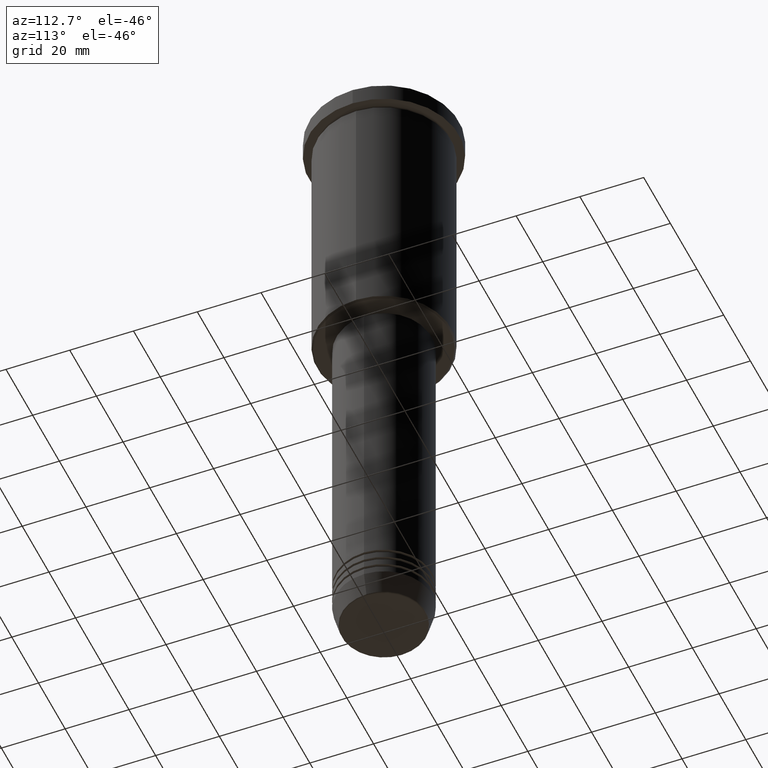
[diagram: clean part render]
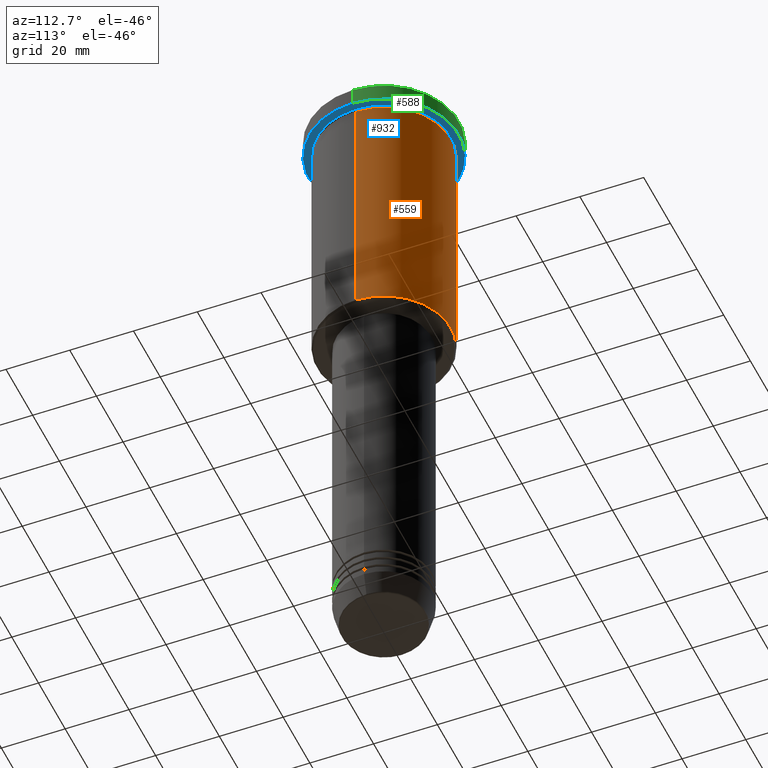
[diagram: same view with three faces highlighted in distinct colors, each labeled with its STEP entity id]
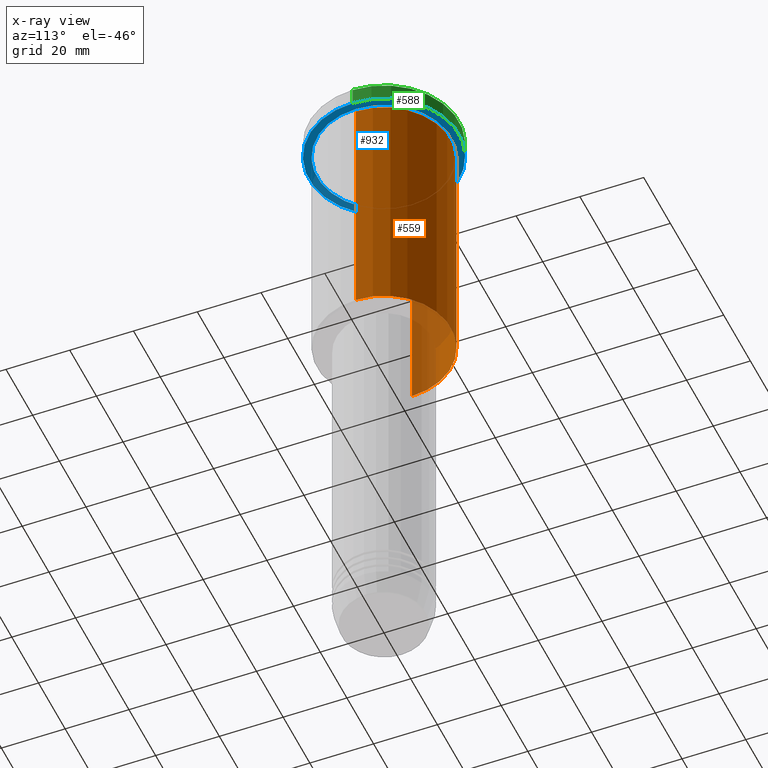
[diagram: x-ray of the same camera — body ghosted, the three highlighted faces saturated]
A machine part, auxiliary view with three faces highlighted in distinct colors.
The next image is the same camera in x-ray (body ghosted, the three faces saturated) — at least one of them is partly hidden behind the body in this view.
Their STEP definitions:

[orange] entity #559 — the highlighted cylindrical surface (partial cylindrical patch) has radius 21 mm, axis along (-0, -0, 1).
#11 = AXIS2_PLACEMENT_3D ( 'NONE', #710, #608, #257 ) ;
#15 = CARTESIAN_POINT ( 'NONE',  ( 0.000000000000000000, 0.000000000000000000, -6.999999999999994671 ) ) ;
#71 = AXIS2_PLACEMENT_3D ( 'NONE', #15, #749, #1109 ) ;
#109 = AXIS2_PLACEMENT_3D ( 'NONE', #249, #886, #1066 ) ;
#150 = VECTOR ( 'NONE', #752, 1000.000000000000000 ) ;
#210 = CARTESIAN_POINT ( 'NONE',  ( -21.00000000000000000, 2.571758278209441661E-15, 0.000000000000000000 ) ) ;
#220 = EDGE_CURVE ( 'NONE', #1074, #974, #1116, .T. ) ;
#240 = FACE_OUTER_BOUND ( 'NONE', #875, .T. ) ;
#249 = CARTESIAN_POINT ( 'NONE',  ( 0.000000000000000000, 0.000000000000000000, 0.000000000000000000 ) ) ;
#257 = DIRECTION ( 'NONE',  ( -1.000000000000000000, 0.000000000000000000, 0.000000000000000000 ) ) ;
#271 = DIRECTION ( 'NONE',  ( -0.000000000000000000, -0.000000000000000000, 1.000000000000000000 ) ) ;
#332 = VECTOR ( 'NONE', #271, 1000.000000000000000 ) ;
#354 = CARTESIAN_POINT ( 'NONE',  ( -21.00000000000000000, 2.571758278209441661E-15, -6.999999999999994671 ) ) ;
#398 = LINE ( 'NONE', #472, #332 ) ;
#441 = VERTEX_POINT ( 'NONE', #957 ) ;
#453 = EDGE_CURVE ( 'NONE', #764, #974, #777, .T. ) ;
#472 = CARTESIAN_POINT ( 'NONE',  ( 21.00000000000000000, 0.000000000000000000, 0.000000000000000000 ) ) ;
#483 = ORIENTED_EDGE ( 'NONE', *, *, #220, .F. ) ;
#487 = ORIENTED_EDGE ( 'NONE', *, *, #976, .T. ) ;
#535 = CYLINDRICAL_SURFACE ( 'NONE', #109, 21.00000000000000000 ) ;
#542 = CIRCLE ( 'NONE', #11, 21.00000000000000000 ) ;
#559 = ADVANCED_FACE ( 'NONE', ( #240 ), #535, .T. ) ;
#587 = CARTESIAN_POINT ( 'NONE',  ( -21.00000000000000000, 2.571758278209441661E-15, -85.49999999999997158 ) ) ;
#608 = DIRECTION ( 'NONE',  ( -0.000000000000000000, -0.000000000000000000, 1.000000000000000000 ) ) ;
#710 = CARTESIAN_POINT ( 'NONE',  ( 0.000000000000000000, 0.000000000000000000, -85.49999999999997158 ) ) ;
#749 = DIRECTION ( 'NONE',  ( -0.000000000000000000, -0.000000000000000000, 1.000000000000000000 ) ) ;
#752 = DIRECTION ( 'NONE',  ( -0.000000000000000000, -0.000000000000000000, 1.000000000000000000 ) ) ;
#764 = VERTEX_POINT ( 'NONE', #587 ) ;
#777 = LINE ( 'NONE', #210, #150 ) ;
#809 = CARTESIAN_POINT ( 'NONE',  ( 21.00000000000000000, 0.000000000000000000, -6.999999999999994671 ) ) ;
#855 = ORIENTED_EDGE ( 'NONE', *, *, #1130, .F. ) ;
#875 = EDGE_LOOP ( 'NONE', ( #487, #1133, #483, #855 ) ) ;
#886 = DIRECTION ( 'NONE',  ( -0.000000000000000000, -0.000000000000000000, 1.000000000000000000 ) ) ;
#957 = CARTESIAN_POINT ( 'NONE',  ( 21.00000000000000000, 0.000000000000000000, -85.49999999999997158 ) ) ;
#974 = VERTEX_POINT ( 'NONE', #354 ) ;
#976 = EDGE_CURVE ( 'NONE', #441, #764, #542, .T. ) ;
#1066 = DIRECTION ( 'NONE',  ( 1.000000000000000000, 0.000000000000000000, 0.000000000000000000 ) ) ;
#1074 = VERTEX_POINT ( 'NONE', #809 ) ;
#1109 = DIRECTION ( 'NONE',  ( 1.000000000000000000, 0.000000000000000000, 0.000000000000000000 ) ) ;
#1116 = CIRCLE ( 'NONE', #71, 21.00000000000000000 ) ;
#1130 = EDGE_CURVE ( 'NONE', #441, #1074, #398, .T. ) ;
#1133 = ORIENTED_EDGE ( 'NONE', *, *, #453, .T. ) ;

[blue] entity #932 — the highlighted planar face has unit normal (0, 0, -1).
#20 = CARTESIAN_POINT ( 'NONE',  ( -23.50000000000000000, 2.877919977996280320E-15, -5.999999999999994671 ) ) ;
#47 = EDGE_LOOP ( 'NONE', ( #909, #1065 ) ) ;
#59 = CARTESIAN_POINT ( 'NONE',  ( 0.000000000000000000, 0.000000000000000000, -5.999999999999994671 ) ) ;
#63 = CARTESIAN_POINT ( 'NONE',  ( 23.50000000000000000, 0.000000000000000000, -5.999999999999994671 ) ) ;
#117 = DIRECTION ( 'NONE',  ( -1.000000000000000000, 0.000000000000000000, 0.000000000000000000 ) ) ;
#123 = ORIENTED_EDGE ( 'NONE', *, *, #623, .T. ) ;
#165 = VERTEX_POINT ( 'NONE', #20 ) ;
#186 = CARTESIAN_POINT ( 'NONE',  ( 0.000000000000000000, 0.000000000000000000, -5.999999999999994671 ) ) ;
#193 = CARTESIAN_POINT ( 'NONE',  ( 0.000000000000000000, 0.000000000000000000, -5.999999999999994671 ) ) ;
#259 = CARTESIAN_POINT ( 'NONE',  ( 0.000000000000000000, 0.000000000000000000, -5.999999999999994671 ) ) ;
#265 = CIRCLE ( 'NONE', #1096, 21.00000000000000000 ) ;
#277 = EDGE_CURVE ( 'NONE', #1036, #292, #265, .T. ) ;
#281 = CARTESIAN_POINT ( 'NONE',  ( -21.00000000000000000, 0.000000000000000000, -5.999999999999994671 ) ) ;
#292 = VERTEX_POINT ( 'NONE', #281 ) ;
#297 = ORIENTED_EDGE ( 'NONE', *, *, #277, .T. ) ;
#308 = EDGE_CURVE ( 'NONE', #1004, #165, #924, .T. ) ;
#319 = EDGE_LOOP ( 'NONE', ( #123, #297 ) ) ;
#348 = CIRCLE ( 'NONE', #964, 23.50000000000000000 ) ;
#385 = AXIS2_PLACEMENT_3D ( 'NONE', #186, #577, #725 ) ;
#405 = AXIS2_PLACEMENT_3D ( 'NONE', #259, #1075, #436 ) ;
#429 = FACE_OUTER_BOUND ( 'NONE', #47, .T. ) ;
#434 = PLANE ( 'NONE',  #741 ) ;
#436 = DIRECTION ( 'NONE',  ( -1.000000000000000000, 0.000000000000000000, 0.000000000000000000 ) ) ;
#515 = FACE_BOUND ( 'NONE', #319, .T. ) ;
#536 = EDGE_CURVE ( 'NONE', #165, #1004, #348, .T. ) ;
#577 = DIRECTION ( 'NONE',  ( -0.000000000000000000, -0.000000000000000000, 1.000000000000000000 ) ) ;
#604 = DIRECTION ( 'NONE',  ( -1.000000000000000000, 0.000000000000000000, -0.000000000000000000 ) ) ;
#623 = EDGE_CURVE ( 'NONE', #292, #1036, #870, .T. ) ;
#713 = DIRECTION ( 'NONE',  ( -0.000000000000000000, -0.000000000000000000, 1.000000000000000000 ) ) ;
#725 = DIRECTION ( 'NONE',  ( 1.000000000000000000, 0.000000000000000000, 0.000000000000000000 ) ) ;
#741 = AXIS2_PLACEMENT_3D ( 'NONE', #884, #793, #604 ) ;
#793 = DIRECTION ( 'NONE',  ( 0.000000000000000000, 0.000000000000000000, -1.000000000000000000 ) ) ;
#870 = CIRCLE ( 'NONE', #405, 21.00000000000000000 ) ;
#884 = CARTESIAN_POINT ( 'NONE',  ( 0.000000000000000000, 23.50000000000000000, -5.999999999999994671 ) ) ;
#895 = DIRECTION ( 'NONE',  ( 1.000000000000000000, 0.000000000000000000, 0.000000000000000000 ) ) ;
#900 = CARTESIAN_POINT ( 'NONE',  ( 21.00000000000000000, 2.571758278209441661E-15, -5.999999999999994671 ) ) ;
#909 = ORIENTED_EDGE ( 'NONE', *, *, #308, .F. ) ;
#924 = CIRCLE ( 'NONE', #385, 23.50000000000000000 ) ;
#932 = ADVANCED_FACE ( 'NONE', ( #515, #429 ), #434, .T. ) ;
#964 = AXIS2_PLACEMENT_3D ( 'NONE', #59, #713, #895 ) ;
#1004 = VERTEX_POINT ( 'NONE', #63 ) ;
#1036 = VERTEX_POINT ( 'NONE', #900 ) ;
#1065 = ORIENTED_EDGE ( 'NONE', *, *, #536, .F. ) ;
#1075 = DIRECTION ( 'NONE',  ( -0.000000000000000000, -0.000000000000000000, 1.000000000000000000 ) ) ;
#1096 = AXIS2_PLACEMENT_3D ( 'NONE', #193, #1177, #117 ) ;
#1177 = DIRECTION ( 'NONE',  ( -0.000000000000000000, -0.000000000000000000, 1.000000000000000000 ) ) ;

[green] entity #588 — the highlighted cylindrical surface (partial cylindrical patch) has radius 23.5 mm, axis along (-0, -0, 1).
#20 = CARTESIAN_POINT ( 'NONE',  ( -23.50000000000000000, 2.877919977996280320E-15, -5.999999999999994671 ) ) ;
#31 = CARTESIAN_POINT ( 'NONE',  ( -23.50000000000000000, 2.877919977996280320E-15, 0.000000000000000000 ) ) ;
#63 = CARTESIAN_POINT ( 'NONE',  ( 23.50000000000000000, 0.000000000000000000, -5.999999999999994671 ) ) ;
#115 = AXIS2_PLACEMENT_3D ( 'NONE', #908, #934, #121 ) ;
#121 = DIRECTION ( 'NONE',  ( 1.000000000000000000, 0.000000000000000000, 0.000000000000000000 ) ) ;
#152 = DIRECTION ( 'NONE',  ( -0.000000000000000000, -0.000000000000000000, 1.000000000000000000 ) ) ;
#165 = VERTEX_POINT ( 'NONE', #20 ) ;
#186 = CARTESIAN_POINT ( 'NONE',  ( 0.000000000000000000, 0.000000000000000000, -5.999999999999994671 ) ) ;
#256 = VERTEX_POINT ( 'NONE', #1095 ) ;
#302 = LINE ( 'NONE', #668, #630 ) ;
#308 = EDGE_CURVE ( 'NONE', #1004, #165, #924, .T. ) ;
#385 = AXIS2_PLACEMENT_3D ( 'NONE', #186, #577, #725 ) ;
#449 = CYLINDRICAL_SURFACE ( 'NONE', #1040, 23.50000000000000000 ) ;
#485 = EDGE_CURVE ( 'NONE', #1004, #256, #302, .T. ) ;
#577 = DIRECTION ( 'NONE',  ( -0.000000000000000000, -0.000000000000000000, 1.000000000000000000 ) ) ;
#583 = DIRECTION ( 'NONE',  ( -0.000000000000000000, -0.000000000000000000, 1.000000000000000000 ) ) ;
#586 = ORIENTED_EDGE ( 'NONE', *, *, #485, .F. ) ;
#588 = ADVANCED_FACE ( 'NONE', ( #962 ), #449, .T. ) ;
#600 = LINE ( 'NONE', #31, #1100 ) ;
#630 = VECTOR ( 'NONE', #583, 1000.000000000000000 ) ;
#668 = CARTESIAN_POINT ( 'NONE',  ( 23.50000000000000000, 0.000000000000000000, 0.000000000000000000 ) ) ;
#706 = ORIENTED_EDGE ( 'NONE', *, *, #308, .T. ) ;
#722 = ORIENTED_EDGE ( 'NONE', *, *, #1165, .T. ) ;
#724 = CIRCLE ( 'NONE', #115, 23.50000000000000000 ) ;
#725 = DIRECTION ( 'NONE',  ( 1.000000000000000000, 0.000000000000000000, 0.000000000000000000 ) ) ;
#763 = EDGE_CURVE ( 'NONE', #165, #1117, #600, .T. ) ;
#802 = CARTESIAN_POINT ( 'NONE',  ( 0.000000000000000000, 0.000000000000000000, 0.000000000000000000 ) ) ;
#850 = DIRECTION ( 'NONE',  ( -0.000000000000000000, -0.000000000000000000, 1.000000000000000000 ) ) ;
#885 = EDGE_LOOP ( 'NONE', ( #706, #1157, #722, #586 ) ) ;
#908 = CARTESIAN_POINT ( 'NONE',  ( 0.000000000000000000, 0.000000000000000000, -0.5000000000000004441 ) ) ;
#924 = CIRCLE ( 'NONE', #385, 23.50000000000000000 ) ;
#934 = DIRECTION ( 'NONE',  ( 0.000000000000000000, 0.000000000000000000, -1.000000000000000000 ) ) ;
#962 = FACE_OUTER_BOUND ( 'NONE', #885, .T. ) ;
#1004 = VERTEX_POINT ( 'NONE', #63 ) ;
#1040 = AXIS2_PLACEMENT_3D ( 'NONE', #802, #152, #1161 ) ;
#1087 = CARTESIAN_POINT ( 'NONE',  ( -23.50000000000000000, 2.877919977996280320E-15, -0.5000000000000004441 ) ) ;
#1095 = CARTESIAN_POINT ( 'NONE',  ( 23.50000000000000000, 0.000000000000000000, -0.5000000000000004441 ) ) ;
#1100 = VECTOR ( 'NONE', #850, 1000.000000000000000 ) ;
#1117 = VERTEX_POINT ( 'NONE', #1087 ) ;
#1157 = ORIENTED_EDGE ( 'NONE', *, *, #763, .T. ) ;
#1161 = DIRECTION ( 'NONE',  ( 1.000000000000000000, 0.000000000000000000, 0.000000000000000000 ) ) ;
#1165 = EDGE_CURVE ( 'NONE', #1117, #256, #724, .T. ) ;